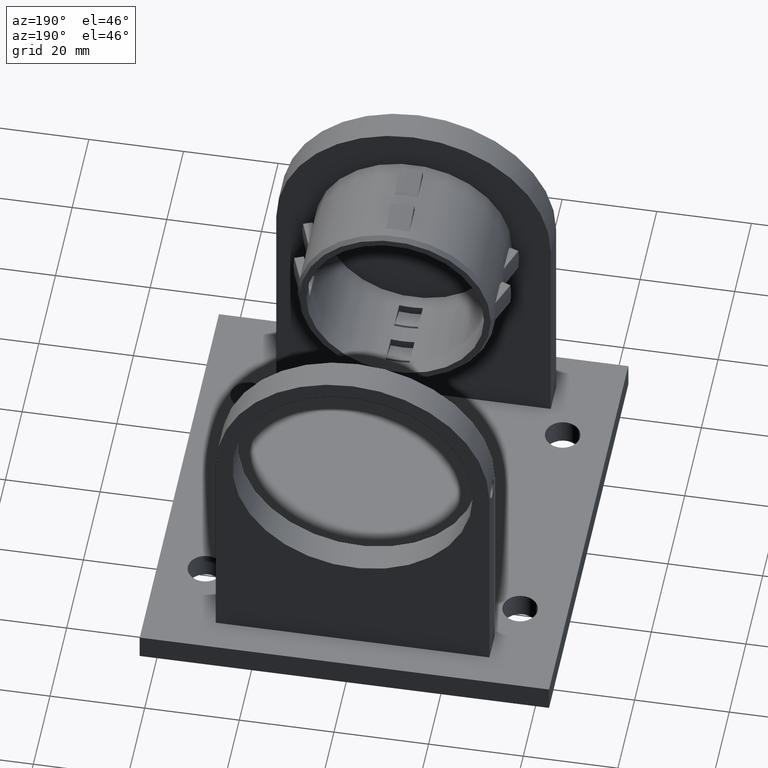
[diagram: clean part render]
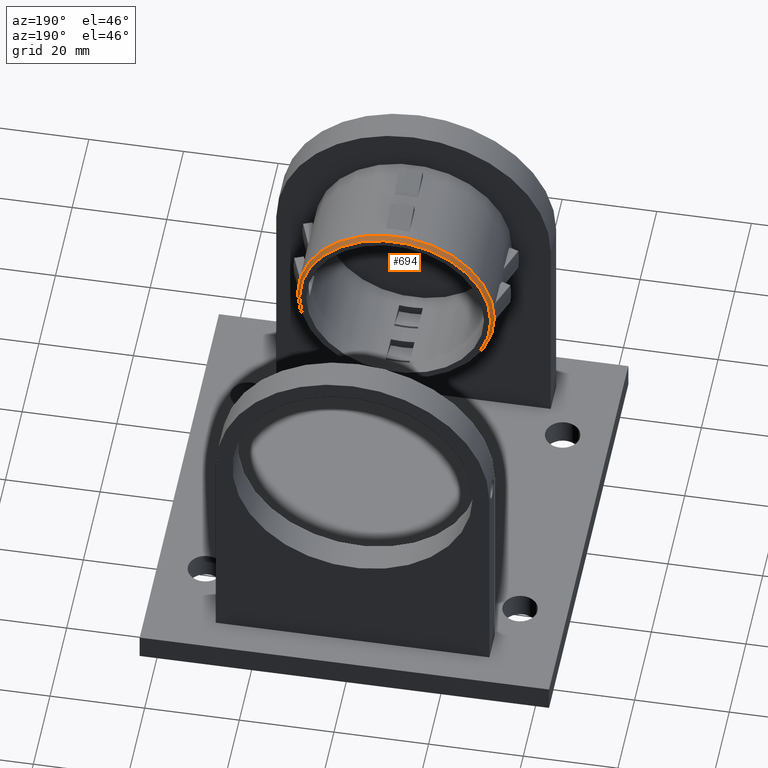
[diagram: same view with one face highlighted and labeled with its STEP entity id]
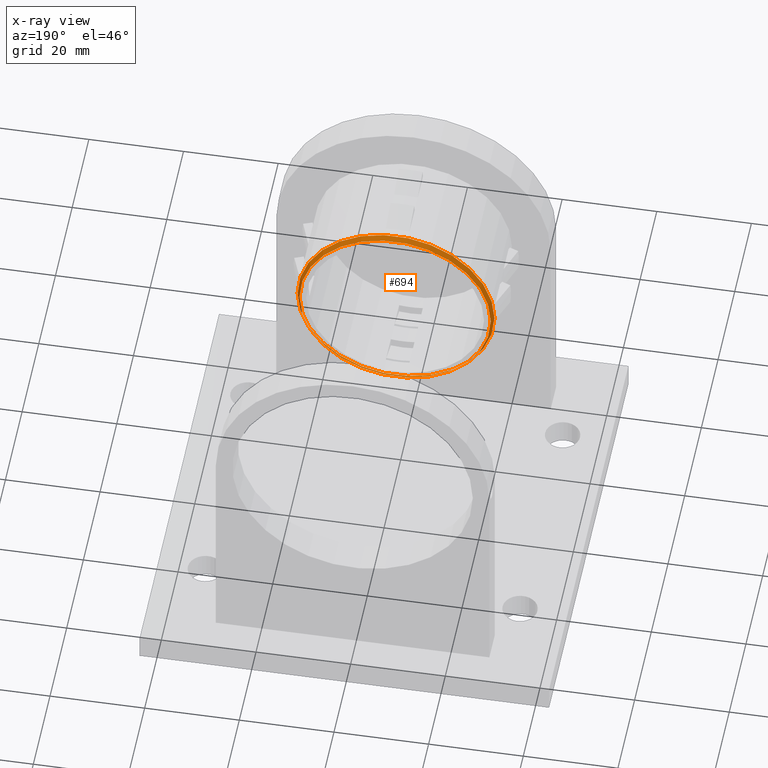
[diagram: x-ray of the same camera — body ghosted, the highlighted face saturated]
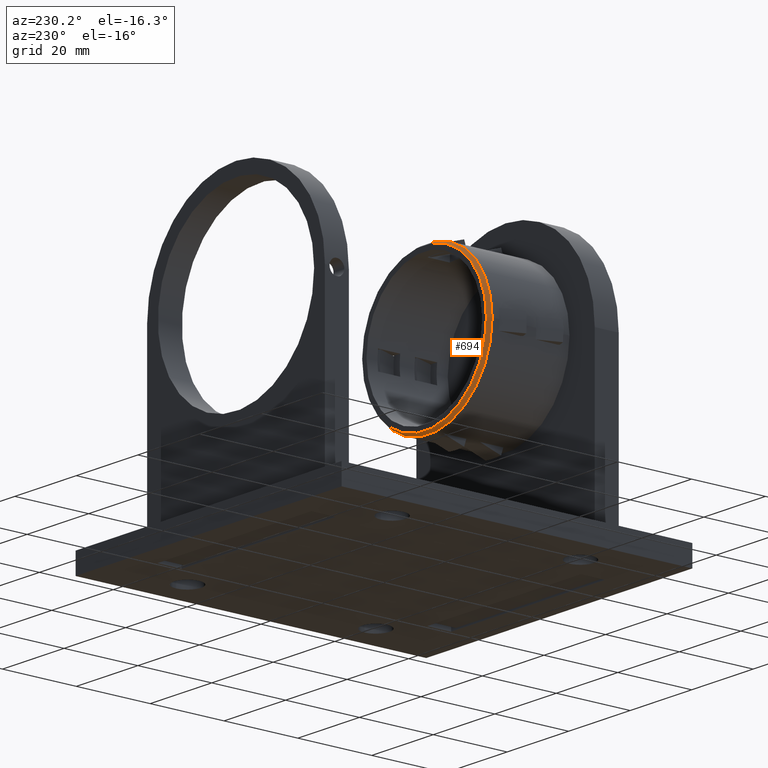
[diagram: same view with one face highlighted and labeled with its STEP entity id]
A machine part, auxiliary view. The second image highlights one B-rep face of the part: STEP entity #694.
The next image is the same camera in x-ray: the body ghosted, the highlighted face saturated — about 5% of this face is hidden behind the body in this view.
A second angle (auxiliary view) of the same face is appended — the face is thin or edge-on in the first view.
In plain terms, the highlighted conical surface has half-angle 30 deg.
Its self-contained STEP definition (entity closure, byte-faithful):
#694=ADVANCED_FACE('',(#1797,#1799),#1801,.T.);
#1797=FACE_OUTER_BOUND('',#1798,.T.);
#1798=EDGE_LOOP('',(#2646));
#1799=FACE_OUTER_BOUND('',#1800,.T.);
#1800=EDGE_LOOP('',(#2647));
#1801=CONICAL_SURFACE('',#1802,20.5,0.523598775598299);
#1802=AXIS2_PLACEMENT_3D('',#1803,#1804,#1805);
#1803=CARTESIAN_POINT('',(0.,27.9803847577293,0.));
#1804=DIRECTION('',(0.,-1.,-0.));
#1805=DIRECTION('',(-1.,-0.,-0.));
#2646=ORIENTED_EDGE('',*,*,#3054,.T.);
#2647=ORIENTED_EDGE('',*,*,#3167,.F.);
#3054=EDGE_CURVE('',#3442,#3442,#3443,.T.);
#3167=EDGE_CURVE('',#3653,#3653,#3654,.T.);
#3442=VERTEX_POINT('',#4405);
#3443=CIRCLE('',#4406,20.8);
#3653=VERTEX_POINT('',#4889);
#3654=CIRCLE('',#4890,20.2);
#4405=CARTESIAN_POINT('',(20.8,27.4607695154587,2.54726534222649E-015));
#4406=AXIS2_PLACEMENT_3D('',#4407,#4408,#4409);
#4407=CARTESIAN_POINT('',(0.,27.4607695154587,0.));
#4408=DIRECTION('',(-0.,1.,0.));
#4409=DIRECTION('',(1.,0.,0.));
#4889=CARTESIAN_POINT('',(20.2,28.5,2.47378653427765E-015));
#4890=AXIS2_PLACEMENT_3D('',#4891,#4892,#4893);
#4891=CARTESIAN_POINT('',(0.,28.5,0.));
#4892=DIRECTION('',(-0.,1.,0.));
#4893=DIRECTION('',(1.,0.,0.));